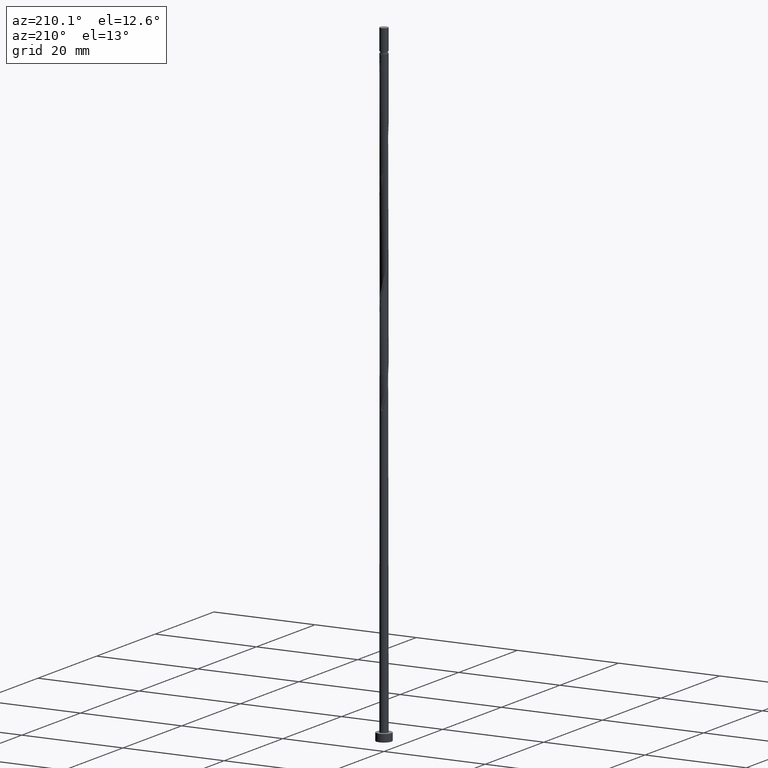
[diagram: clean part render]
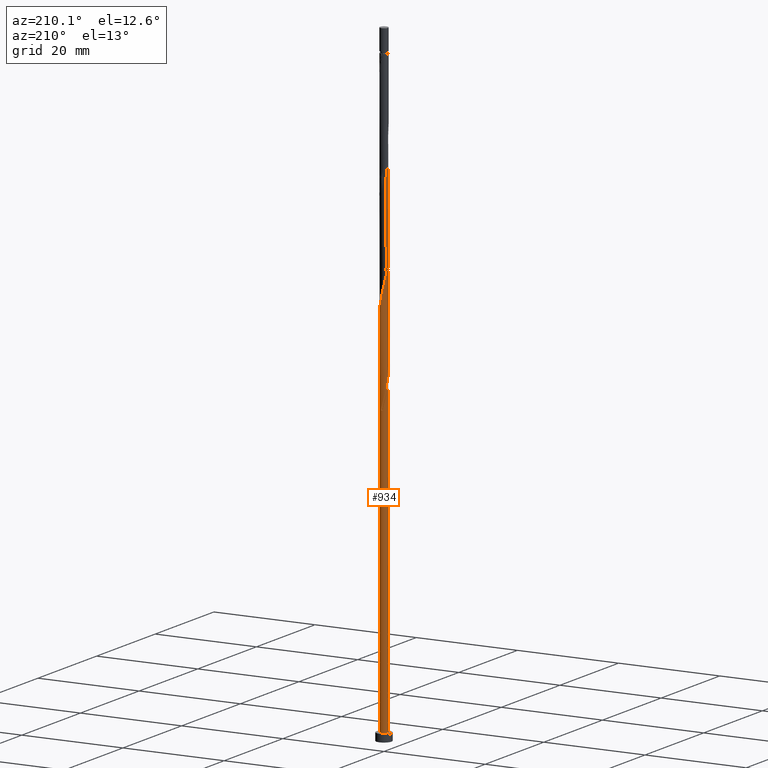
[diagram: same view with one face highlighted and labeled with its STEP entity id]
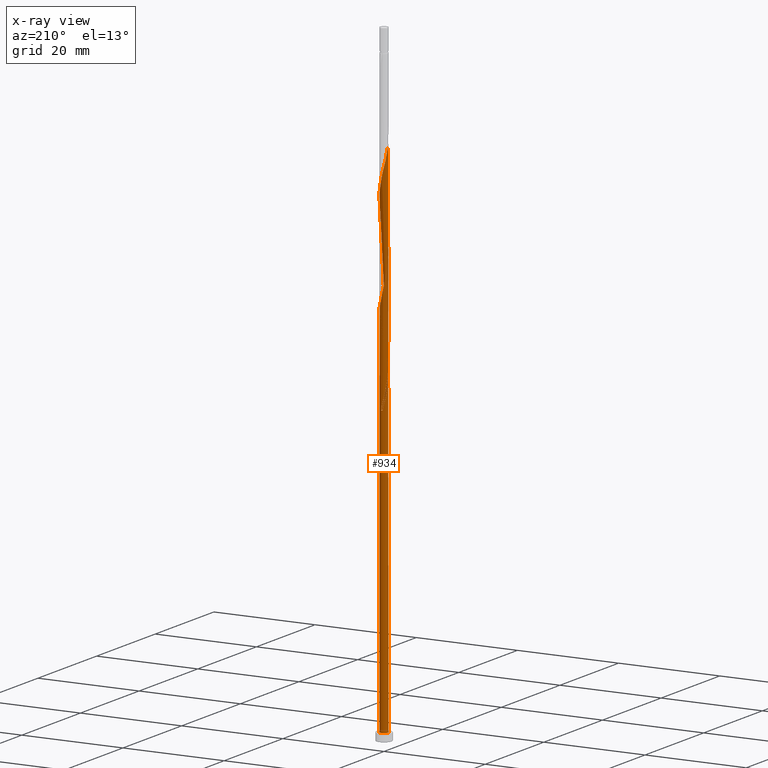
[diagram: x-ray of the same camera — body ghosted, the highlighted face saturated]
A machine part, auxiliary view. The second image highlights one B-rep face of the part: STEP entity #934.
The next image is the same camera in x-ray: the body ghosted, the highlighted face saturated — about 0% of this face is hidden behind the body in this view.
In plain terms, the highlighted cylindrical surface (bore or boss wall) has radius 0.8 mm, axis along (-0, -0, -1).
Its self-contained STEP definition (entity closure, byte-faithful):
#38 = EDGE_CURVE ( 'NONE', #1007, #109, #391, .T. ) ;
#41 = CARTESIAN_POINT ( 'NONE',  ( -0.4473088524546936506, 0.6752552068035418964, 60.65286961656157416 ) ) ;
#50 = CARTESIAN_POINT ( 'NONE',  ( -0.8000000000000014877, 1.015782713562173811E-15, 63.92183872469851735 ) ) ;
#57 = CARTESIAN_POINT ( 'NONE',  ( 0.09086303787922854480, 0.7948231931362848002, 77.84036961656160258 ) ) ;
#62 = CARTESIAN_POINT ( 'NONE',  ( -0.7840000000000015845, 0.1591979899370596363, 63.25703628322827399 ) ) ;
#70 = CARTESIAN_POINT ( 'NONE',  ( -0.7840000000000013625, -0.1591979899370594975, 63.25703628322825978 ) ) ;
#75 = CARTESIAN_POINT ( 'NONE',  ( -0.3936756093006899548, 0.6964334244145182762, 59.09036961656157416 ) ) ;
#80 = CARTESIAN_POINT ( 'NONE',  ( -0.7278435542695689264, 0.3320297584678865710, 61.17370294989493118 ) ) ;
#87 = CARTESIAN_POINT ( 'NONE',  ( 0.2167506644810797689, 0.7804319017355962895, 98.15286961656160258 ) ) ;
#93 = CARTESIAN_POINT ( 'NONE',  ( 0.8092144845369734218, 0.03502458872262277645, 93.98620294989494539 ) ) ;
#101 = CARTESIAN_POINT ( 'NONE',  ( -0.6752552068035418964, 0.4473088524546935396, 102.3195362832282456 ) ) ;
#109 = VERTEX_POINT ( 'NONE', #602 ) ;
#135 = AXIS2_PLACEMENT_3D ( 'NONE', #1389, #1288, #615 ) ;
#152 = CARTESIAN_POINT ( 'NONE',  ( -0.3320297584678866820, 0.7278435542695691485, 60.13203628322826688 ) ) ;
#166 = CARTESIAN_POINT ( 'NONE',  ( 0.03502458872262283196, -0.8092144845369734218, 67.94453628322824557 ) ) ;
#178 = CARTESIAN_POINT ( 'NONE',  ( -0.7948231931362848002, 0.09086303787922839215, 62.21536961656158837 ) ) ;
#179 = ORIENTED_EDGE ( 'NONE', *, *, #307, .F. ) ;
#187 = CARTESIAN_POINT ( 'NONE',  ( -0.8092144845369734218, -0.03502458872262291523, 83.56953628322825978 ) ) ;
#193 = CARTESIAN_POINT ( 'NONE',  ( 0.03502458872262283196, -0.8092144845369734218, 88.77786961656161679 ) ) ;
#199 = CARTESIAN_POINT ( 'NONE',  ( 0.5896175171267125092, -0.5406950929103505610, 91.38203628322825978 ) ) ;
#209 = CARTESIAN_POINT ( 'NONE',  ( -0.2833713911514961770, 0.7587855154630289700, 100.2362029498949312 ) ) ;
#224 = ORIENTED_EDGE ( 'NONE', *, *, #307, .T. ) ;
#248 = CARTESIAN_POINT ( 'NONE',  ( -0.8000000000000012657, -9.558103024293533539E-16, 62.59223384175800931 ) ) ;
#249 = CYLINDRICAL_SURFACE ( 'NONE', #868, 0.8000000000000000444 ) ;
#263 = CARTESIAN_POINT ( 'NONE',  ( -0.2167506644810796024, 0.7804319017355962895, 59.61120294989490276 ) ) ;
#264 = CARTESIAN_POINT ( 'NONE',  ( -0.8000000000000000444, 0.000000000000000000, 1.500000000000000000 ) ) ;
#275 = AXIS2_PLACEMENT_3D ( 'NONE', #545, #325, #914 ) ;
#278 = CARTESIAN_POINT ( 'NONE',  ( 0.1591979899370594698, -0.7840000000000013625, 68.46536961656158837 ) ) ;
#283 = CARTESIAN_POINT ( 'NONE',  ( -0.6752552068035418964, 0.4473088524546935396, 60.65286961656160258 ) ) ;
#287 = CARTESIAN_POINT ( 'NONE',  ( -0.7948231931362848002, 0.09086303787922839215, 83.04870294989493118 ) ) ;
#289 = LINE ( 'NONE', #992, #820 ) ;
#293 = AXIS2_PLACEMENT_3D ( 'NONE', #1451, #559, #435 ) ;
#294 = CARTESIAN_POINT ( 'NONE',  ( 0.3320297584678867375, 0.7278435542695689264, 76.79870294989490276 ) ) ;
#300 = CARTESIAN_POINT ( 'NONE',  ( 0.7278435542695689264, -0.3320297584678867375, 71.59036961656157416 ) ) ;
#306 = CARTESIAN_POINT ( 'NONE',  ( 0.4473088524546936506, 0.6752552068035415633, 97.11120294989491697 ) ) ;
#307 = EDGE_CURVE ( 'NONE', #321, #797, #289, .T. ) ;
#314 = CARTESIAN_POINT ( 'NONE',  ( 0.5406950929103505610, 0.5896175171267123982, 96.59036961656161679 ) ) ;
#321 = VERTEX_POINT ( 'NONE', #248 ) ;
#325 = DIRECTION ( 'NONE',  ( 0.000000000000000000, 0.000000000000000000, 1.000000000000000000 ) ) ;
#330 = ORIENTED_EDGE ( 'NONE', *, *, #644, .T. ) ;
#352 = CARTESIAN_POINT ( 'NONE',  ( -0.1591979899370593865, 0.7840000000000013625, 58.04870294989491697 ) ) ;
#384 = CARTESIAN_POINT ( 'NONE',  ( 0.4473088524546936506, 0.6752552068035415633, 76.27786961656160258 ) ) ;
#386 = VERTEX_POINT ( 'NONE', #352 ) ;
#391 =( BOUNDED_CURVE ( )  B_SPLINE_CURVE ( 2, ( #50, #515, #62, #970, #849, #610, #504, #41, #152, #263, #1404, #482, #942 ),
 .UNSPECIFIED., .F., .F. ) 
 B_SPLINE_CURVE_WITH_KNOTS ( ( 3, 2, 2, 2, 2, 2, 3 ),
 ( 0.9295322023138553602, 0.9375000000000000000, 0.9499999999999999556, 0.9625000000000000222, 0.9749999999999999778, 0.9875000000000000444, 1.000000000000000000 ),
 .UNSPECIFIED. ) 
 CURVE ( )  GEOMETRIC_REPRESENTATION_ITEM ( )  RATIONAL_B_SPLINE_CURVE ( ( 0.9039174447099518339, 0.9019565955404815760, 0.9090909090909298218, 0.8978984914501458858, 0.9090909090909298218, 0.8978984914501458858, 0.9090909090909298218, 0.8978984914501458858, 0.9090909090909298218, 0.8978984914501458858, 0.9090909090909298218, 0.8978984914501458858, 0.9090909090909298218 ) ) 
 REPRESENTATION_ITEM ( '' )  );
#394 = CARTESIAN_POINT ( 'NONE',  ( -0.8000000000000012657, -9.558103024293533539E-16, 62.59223384175800931 ) ) ;
#399 = CARTESIAN_POINT ( 'NONE',  ( 0.5896175171267125092, -0.5406950929103505610, 70.54870294989491697 ) ) ;
#412 = CARTESIAN_POINT ( 'NONE',  ( 0.6340813333660078044, 0.5039798274498835662, 75.23620294989493118 ) ) ;
#417 = CARTESIAN_POINT ( 'NONE',  ( 0.7278435542695689264, -0.3320297584678867375, 92.42370294989490276 ) ) ;
#423 = CARTESIAN_POINT ( 'NONE',  ( 0.2833713911514960659, -0.7587855154630289700, 89.81953628322825978 ) ) ;
#432 = ORIENTED_EDGE ( 'NONE', *, *, #1103, .F. ) ;
#435 = DIRECTION ( 'NONE',  ( 1.000000000000000000, 0.000000000000000000, 0.000000000000000000 ) ) ;
#461 = CIRCLE ( 'NONE', #135, 0.8000000000000000444 ) ;
#469 = DIRECTION ( 'NONE',  ( -0.000000000000000000, -0.000000000000000000, -1.000000000000000000 ) ) ;
#482 = CARTESIAN_POINT ( 'NONE',  ( 0.03502458872262293604, 0.8092144845369735329, 58.56953628322825267 ) ) ;
#499 = CARTESIAN_POINT ( 'NONE',  ( -0.03502458872262271400, 0.8092144845369734218, 78.36120294989491697 ) ) ;
#504 = CARTESIAN_POINT ( 'NONE',  ( -0.5406950929103506720, 0.5896175171267129533, 61.17370294989491697 ) ) ;
#505 = CARTESIAN_POINT ( 'NONE',  ( 0.8092144845369734218, 0.03502458872262277645, 73.15286961656158837 ) ) ;
#515 = CARTESIAN_POINT ( 'NONE',  ( -0.8000000000000010436, 0.08040302522073877745, 63.58753414929067560 ) ) ;
#516 = CARTESIAN_POINT ( 'NONE',  ( -0.1591979899370593865, 0.7840000000000013625, 58.04870294989491697 ) ) ;
#522 = CARTESIAN_POINT ( 'NONE',  ( -0.6964334244145182762, -0.3936756093006898438, 64.29870294989493118 ) ) ;
#523 = VERTEX_POINT ( 'NONE', #1008 ) ;
#528 = CARTESIAN_POINT ( 'NONE',  ( -0.8000000000000013767, -0.08040302522073711211, 62.92653841716585106 ) ) ;
#531 = EDGE_CURVE ( 'NONE', #523, #1007, #763, .T. ) ;
#535 = CARTESIAN_POINT ( 'NONE',  ( -0.4473088524546935396, -0.6752552068035416744, 86.69453628322830241 ) ) ;
#541 = CARTESIAN_POINT ( 'NONE',  ( -0.03502458872262271400, 0.8092144845369734218, 99.19453628322825978 ) ) ;
#545 = CARTESIAN_POINT ( 'NONE',  ( 0.000000000000000000, 0.000000000000000000, 1.500000000000000000 ) ) ;
#548 = CARTESIAN_POINT ( 'NONE',  ( -0.09086303787922839215, -0.7948231931362848002, 88.25703628322828820 ) ) ;
#550 = EDGE_LOOP ( 'NONE', ( #851, #1016, #224, #330, #1283, #179, #432, #687, #963 ) ) ;
#559 = DIRECTION ( 'NONE',  ( 0.000000000000000000, 0.000000000000000000, 1.000000000000000000 ) ) ;
#567 = CARTESIAN_POINT ( 'NONE',  ( -0.8000000000000017097, 0.04557898995714362161, 104.0693894192174014 ) ) ;
#594 = CARTESIAN_POINT ( 'NONE',  ( -0.8000000000000014877, 1.015782713562174009E-15, 63.92183872469851735 ) ) ;
#602 = CARTESIAN_POINT ( 'NONE',  ( 0.1591979899370598028, 0.7840000000000015845, 58.04870294989491697 ) ) ;
#610 = CARTESIAN_POINT ( 'NONE',  ( -0.6340813333660076934, 0.5039798274498836772, 61.69453628322823846 ) ) ;
#611 = CARTESIAN_POINT ( 'NONE',  ( -0.7804319017355960675, 0.2167506644810796579, 61.69453628322825978 ) ) ;
#615 = DIRECTION ( 'NONE',  ( -1.000000000000000000, 0.000000000000000000, 0.000000000000000000 ) ) ;
#617 = CARTESIAN_POINT ( 'NONE',  ( -0.3936756093006899548, 0.6964334244145182762, 79.92370294989493118 ) ) ;
#625 = CARTESIAN_POINT ( 'NONE',  ( -0.09086303787922839215, -0.7948231931362848002, 67.42370294989490276 ) ) ;
#639 = CARTESIAN_POINT ( 'NONE',  ( -0.3320297584678867375, -0.7278435542695689264, 66.38203628322824557 ) ) ;
#644 = EDGE_CURVE ( 'NONE', #797, #724, #943, .T. ) ;
#646 = CARTESIAN_POINT ( 'NONE',  ( -0.6340813333660078044, -0.5039798274498836772, 85.65286961656160258 ) ) ;
#653 = CARTESIAN_POINT ( 'NONE',  ( 0.7587855154630289700, 0.2833713911514960104, 95.02786961656160258 ) ) ;
#661 = CARTESIAN_POINT ( 'NONE',  ( -0.5406950929103505610, -0.5896175171267125092, 86.17370294989490276 ) ) ;
#687 = ORIENTED_EDGE ( 'NONE', *, *, #1423, .T. ) ;
#711 = DIRECTION ( 'NONE',  ( -1.000000000000000000, 0.000000000000000000, 0.000000000000000000 ) ) ;
#724 = VERTEX_POINT ( 'NONE', #1388 ) ;
#732 = CARTESIAN_POINT ( 'NONE',  ( 0.7587855154630289700, 0.2833713911514960104, 74.19453628322825978 ) ) ;
#737 = CARTESIAN_POINT ( 'NONE',  ( -0.7587855154630289700, -0.2833713911514961215, 63.77786961656160969 ) ) ;
#742 = CARTESIAN_POINT ( 'NONE',  ( -0.7840000000000013625, -0.1591979899370594975, 84.09036961656157416 ) ) ;
#750 = CARTESIAN_POINT ( 'NONE',  ( -0.6752552068035418964, 0.4473088524546935396, 81.48620294989493118 ) ) ;
#756 = CARTESIAN_POINT ( 'NONE',  ( 0.7804319017355962895, -0.2167506644810797134, 72.11120294989494539 ) ) ;
#762 = CARTESIAN_POINT ( 'NONE',  ( 0.09086303787922854480, 0.7948231931362848002, 98.67370294989491697 ) ) ;
#763 = LINE ( 'NONE', #877, #986 ) ;
#770 = CARTESIAN_POINT ( 'NONE',  ( -0.3936756093006899548, 0.6964334244145182762, 100.7570362832282598 ) ) ;
#772 = DIRECTION ( 'NONE',  ( -0.000000000000000000, -0.000000000000000000, -1.000000000000000000 ) ) ;
#797 = VERTEX_POINT ( 'NONE', #264 ) ;
#820 = VECTOR ( 'NONE', #772, 1000.000000000000000 ) ;
#822 = CARTESIAN_POINT ( 'NONE',  ( 0.000000000000000000, 0.000000000000000000, 125.0000000000000000 ) ) ;
#843 = CARTESIAN_POINT ( 'NONE',  ( -0.5039798274498836772, 0.6340813333660078044, 80.44453628322828820 ) ) ;
#849 = CARTESIAN_POINT ( 'NONE',  ( -0.6964334244145183872, 0.3936756093006901769, 62.21536961656160258 ) ) ;
#850 = CARTESIAN_POINT ( 'NONE',  ( 0.2833713911514960659, -0.7587855154630289700, 68.98620294989490276 ) ) ;
#851 = ORIENTED_EDGE ( 'NONE', *, *, #531, .F. ) ;
#856 = CARTESIAN_POINT ( 'NONE',  ( -0.8000000000000012657, -9.558103024293533539E-16, 62.59223384175800931 ) ) ;
#864 = CARTESIAN_POINT ( 'NONE',  ( -0.6340813333660078044, -0.5039798274498836772, 64.81953628322825978 ) ) ;
#868 = AXIS2_PLACEMENT_3D ( 'NONE', #822, #469, #711 ) ;
#871 = CARTESIAN_POINT ( 'NONE',  ( -0.2833713911514961770, 0.7587855154630289700, 58.56953628322827399 ) ) ;
#876 = CARTESIAN_POINT ( 'NONE',  ( 0.7804319017355962895, -0.2167506644810797134, 92.94453628322827399 ) ) ;
#877 = CARTESIAN_POINT ( 'NONE',  ( -0.8000000000000000444, 0.000000000000000000, 125.0000000000000000 ) ) ;
#884 = CARTESIAN_POINT ( 'NONE',  ( 0.5039798274498835662, -0.6340813333660078044, 90.86120294989493118 ) ) ;
#914 = DIRECTION ( 'NONE',  ( 1.000000000000000000, 0.000000000000000000, 0.000000000000000000 ) ) ;
#934 = ADVANCED_FACE ( 'NONE', ( #1147 ), #249, .T. ) ;
#942 = CARTESIAN_POINT ( 'NONE',  ( 0.1591979899370598028, 0.7840000000000015845, 58.04870294989491697 ) ) ;
#943 = CIRCLE ( 'NONE', #293, 0.8000000000000000444 ) ;
#948 =( BOUNDED_CURVE ( )  B_SPLINE_CURVE ( 2, ( #516, #871, #75, #1078, #984, #283, #80, #611, #178, #1398, #394 ),
 .UNSPECIFIED., .F., .T. ) 
 B_SPLINE_CURVE_WITH_KNOTS ( ( 3, 2, 2, 2, 2, 3 ),
 ( 0.000000000000000000, 0.01249999999999995559, 0.02500000000000002220, 0.03749999999999997780, 0.05000000000000004441, 0.05453220231385520061 ),
 .UNSPECIFIED. ) 
 CURVE ( )  GEOMETRIC_REPRESENTATION_ITEM ( )  RATIONAL_B_SPLINE_CURVE ( ( 0.9090909090909286006, 0.8978984914501445536, 0.9090909090909286006, 0.8978984914501445536, 0.9090909090909286006, 0.8978984914501445536, 0.9090909090909286006, 0.8978984914501445536, 0.9090909090909286006, 0.9050328050005930214, 0.9039174447099509457 ) ) 
 REPRESENTATION_ITEM ( '' )  );
#963 = ORIENTED_EDGE ( 'NONE', *, *, #38, .F. ) ;
#964 = CARTESIAN_POINT ( 'NONE',  ( 0.6964334244145182762, 0.3936756093006897883, 74.71536961656160258 ) ) ;
#970 = CARTESIAN_POINT ( 'NONE',  ( -0.7587855154630288590, 0.2833713911514962880, 62.73620294989493829 ) ) ;
#971 = CARTESIAN_POINT ( 'NONE',  ( -0.4473088524546935396, -0.6752552068035416744, 65.86120294989493118 ) ) ;
#977 = CARTESIAN_POINT ( 'NONE',  ( -0.5406950929103505610, -0.5896175171267125092, 65.34036961656158837 ) ) ;
#984 = CARTESIAN_POINT ( 'NONE',  ( -0.5896175171267125092, 0.5406950929103505610, 60.13203628322825978 ) ) ;
#986 = VECTOR ( 'NONE', #1155, 1000.000000000000000 ) ;
#991 = CARTESIAN_POINT ( 'NONE',  ( -0.6964334244145182762, -0.3936756093006898438, 85.13203628322824557 ) ) ;
#992 = CARTESIAN_POINT ( 'NONE',  ( -0.8000000000000000444, 0.000000000000000000, 125.0000000000000000 ) ) ;
#994 = CARTESIAN_POINT ( 'NONE',  ( -0.7948231931362848002, 0.09086303787922839215, 103.8820362832282598 ) ) ;
#997 = CARTESIAN_POINT ( 'NONE',  ( -0.3320297584678867375, -0.7278435542695689264, 87.21536961656160258 ) ) ;
#1003 =( BOUNDED_CURVE ( )  B_SPLINE_CURVE ( 2, ( #856, #528, #70, #737, #522, #864, #977, #971, #639, #1419, #625, #166, #278, #850, #1412, #1073, #399, #1312, #300, #756, #1196, #505, #1301, #732, #964, #412, #1069, #384, #294, #1406, #57, #499, #1295, #1426, #617, #843, #1290, #750, #1184, #1202, #287, #187, #742, #1090, #991, #646, #661, #535, #997, #1433, #548, #193, #1439, #423, #1214, #884, #199, #1208, #417, #876, #1318, #93, #1448, #653, #1005, #1097, #314, #306, #1107, #87, #762, #541, #1324, #209, #770, #1223, #1115, #101, #1119, #1243, #994, #567, #1127 ),
 .UNSPECIFIED., .F., .F. ) 
 B_SPLINE_CURVE_WITH_KNOTS ( ( 3, 2, 2, 2, 2, 2, 2, 2, 2, 2, 2, 2, 2, 2, 2, 2, 2, 2, 2, 2, 2, 2, 2, 2, 2, 2, 2, 2, 2, 2, 2, 2, 2, 2, 2, 2, 2, 2, 2, 2, 2, 3 ),
 ( 0.05453220231385520061, 0.06250000000000000000, 0.07499999999999995559, 0.08750000000000002220, 0.09999999999999997780, 0.1125000000000000444, 0.1250000000000000000, 0.1374999999999999556, 0.1500000000000000222, 0.1624999999999999778, 0.1750000000000000444, 0.1875000000000000000, 0.1999999999999999556, 0.2125000000000000222, 0.2249999999999999778, 0.2375000000000000444, 0.2500000000000000000, 0.2624999999999999556, 0.2750000000000000222, 0.2874999999999999778, 0.3000000000000000444, 0.3125000000000000000, 0.3249999999999999556, 0.3375000000000000222, 0.3499999999999999778, 0.3625000000000000444, 0.3750000000000000000, 0.3874999999999999556, 0.4000000000000000222, 0.4124999999999999778, 0.4250000000000000444, 0.4375000000000000000, 0.4499999999999999556, 0.4625000000000000222, 0.4749999999999999778, 0.4875000000000000444, 0.5000000000000000000, 0.5124999999999999556, 0.5250000000000000222, 0.5374999999999999778, 0.5500000000000000444, 0.5545322023138554712 ),
 .UNSPECIFIED. ) 
 CURVE ( )  GEOMETRIC_REPRESENTATION_ITEM ( )  RATIONAL_B_SPLINE_CURVE ( ( 0.9039174447099509457, 0.9019565955404801327, 0.9090909090909286006, 0.8978984914501445536, 0.9090909090909286006, 0.8978984914501445536, 0.9090909090909286006, 0.8978984914501445536, 0.9090909090909286006, 0.8978984914501445536, 0.9090909090909286006, 0.8978984914501445536, 0.9090909090909286006, 0.8978984914501445536, 0.9090909090909286006, 0.8978984914501445536, 0.9090909090909286006, 0.8978984914501445536, 0.9090909090909286006, 0.8978984914501445536, 0.9090909090909286006, 0.8978984914501445536, 0.9090909090909286006, 0.8978984914501445536, 0.9090909090909286006, 0.8978984914501445536, 0.9090909090909286006, 0.8978984914501445536, 0.9090909090909286006, 0.8978984914501445536, 0.9090909090909286006, 0.8978984914501445536, 0.9090909090909286006, 0.8978984914501445536, 0.9090909090909286006, 0.8978984914501445536, 0.9090909090909286006, 0.8978984914501445536, 0.9090909090909286006, 0.8978984914501445536, 0.9090909090909286006, 0.8978984914501445536, 0.9090909090909286006, 0.8978984914501445536, 0.9090909090909286006, 0.8978984914501445536, 0.9090909090909286006, 0.8978984914501445536, 0.9090909090909286006, 0.8978984914501445536, 0.9090909090909286006, 0.8978984914501445536, 0.9090909090909286006, 0.8978984914501445536, 0.9090909090909286006, 0.8978984914501445536, 0.9090909090909286006, 0.8978984914501445536, 0.9090909090909286006, 0.8978984914501445536, 0.9090909090909286006, 0.8978984914501445536, 0.9090909090909286006, 0.8978984914501445536, 0.9090909090909286006, 0.8978984914501445536, 0.9090909090909286006, 0.8978984914501445536, 0.9090909090909286006, 0.8978984914501445536, 0.9090909090909286006, 0.8978984914501445536, 0.9090909090909286006, 0.8978984914501445536, 0.9090909090909286006, 0.8978984914501445536, 0.9090909090909286006, 0.8978984914501445536, 0.9090909090909286006, 0.8978984914501445536, 0.9090909090909286006, 0.9050328050005926883, 0.9039174447099506127 ) ) 
 REPRESENTATION_ITEM ( '' )  );
#1005 = CARTESIAN_POINT ( 'NONE',  ( 0.6964334244145182762, 0.3936756093006897883, 95.54870294989493118 ) ) ;
#1007 = VERTEX_POINT ( 'NONE', #594 ) ;
#1008 = CARTESIAN_POINT ( 'NONE',  ( -0.8000000000000012657, -5.509965272828037295E-16, 104.2589005084246594 ) ) ;
#1016 = ORIENTED_EDGE ( 'NONE', *, *, #1123, .F. ) ;
#1069 = CARTESIAN_POINT ( 'NONE',  ( 0.5406950929103505610, 0.5896175171267123982, 75.75703628322825978 ) ) ;
#1073 = CARTESIAN_POINT ( 'NONE',  ( 0.5039798274498835662, -0.6340813333660078044, 70.02786961656158837 ) ) ;
#1078 = CARTESIAN_POINT ( 'NONE',  ( -0.5039798274498836772, 0.6340813333660078044, 59.61120294989492407 ) ) ;
#1090 = CARTESIAN_POINT ( 'NONE',  ( -0.7587855154630289700, -0.2833713911514961215, 84.61120294989494539 ) ) ;
#1097 = CARTESIAN_POINT ( 'NONE',  ( 0.6340813333660078044, 0.5039798274498835662, 96.06953628322825978 ) ) ;
#1103 = EDGE_CURVE ( 'NONE', #386, #321, #948, .T. ) ;
#1107 = CARTESIAN_POINT ( 'NONE',  ( 0.3320297584678867375, 0.7278435542695689264, 97.63203628322824557 ) ) ;
#1115 = CARTESIAN_POINT ( 'NONE',  ( -0.5896175171267125092, 0.5406950929103505610, 101.7987029498949312 ) ) ;
#1119 = CARTESIAN_POINT ( 'NONE',  ( -0.7278435542695689264, 0.3320297584678865710, 102.8403696165615884 ) ) ;
#1123 = EDGE_CURVE ( 'NONE', #321, #523, #1003, .T. ) ;
#1127 = CARTESIAN_POINT ( 'NONE',  ( -0.8000000000000013767, -5.509965272828037295E-16, 104.2589005084246594 ) ) ;
#1147 = FACE_OUTER_BOUND ( 'NONE', #550, .T. ) ;
#1155 = DIRECTION ( 'NONE',  ( -0.000000000000000000, -0.000000000000000000, -1.000000000000000000 ) ) ;
#1171 = EDGE_CURVE ( 'NONE', #724, #797, #1330, .T. ) ;
#1184 = CARTESIAN_POINT ( 'NONE',  ( -0.7278435542695689264, 0.3320297584678865710, 82.00703628322824557 ) ) ;
#1196 = CARTESIAN_POINT ( 'NONE',  ( 0.7948231931362848002, -0.09086303787922843378, 72.63203628322828820 ) ) ;
#1202 = CARTESIAN_POINT ( 'NONE',  ( -0.7804319017355960675, 0.2167506644810796579, 82.52786961656158837 ) ) ;
#1208 = CARTESIAN_POINT ( 'NONE',  ( 0.6752552068035416744, -0.4473088524546935396, 91.90286961656157416 ) ) ;
#1214 = CARTESIAN_POINT ( 'NONE',  ( 0.3936756093006898438, -0.6964334244145182762, 90.34036961656158837 ) ) ;
#1223 = CARTESIAN_POINT ( 'NONE',  ( -0.5039798274498836772, 0.6340813333660078044, 101.2778696165616026 ) ) ;
#1243 = CARTESIAN_POINT ( 'NONE',  ( -0.7804319017355960675, 0.2167506644810796579, 103.3612029498949738 ) ) ;
#1283 = ORIENTED_EDGE ( 'NONE', *, *, #1171, .T. ) ;
#1288 = DIRECTION ( 'NONE',  ( 0.000000000000000000, -0.000000000000000000, -1.000000000000000000 ) ) ;
#1290 = CARTESIAN_POINT ( 'NONE',  ( -0.5896175171267125092, 0.5406950929103505610, 80.96536961656158837 ) ) ;
#1295 = CARTESIAN_POINT ( 'NONE',  ( -0.1591979899370594143, 0.7840000000000013625, 78.88203628322824557 ) ) ;
#1301 = CARTESIAN_POINT ( 'NONE',  ( 0.7840000000000013625, 0.1591979899370594698, 73.67370294989490276 ) ) ;
#1312 = CARTESIAN_POINT ( 'NONE',  ( 0.6752552068035416744, -0.4473088524546935396, 71.06953628322827399 ) ) ;
#1318 = CARTESIAN_POINT ( 'NONE',  ( 0.7948231931362848002, -0.09086303787922843378, 93.46536961656160258 ) ) ;
#1324 = CARTESIAN_POINT ( 'NONE',  ( -0.1591979899370594143, 0.7840000000000013625, 99.71536961656157416 ) ) ;
#1330 = CIRCLE ( 'NONE', #275, 0.8000000000000000444 ) ;
#1388 = CARTESIAN_POINT ( 'NONE',  ( 0.8000000000000000444, 0.000000000000000000, 1.500000000000000000 ) ) ;
#1389 = CARTESIAN_POINT ( 'NONE',  ( 0.000000000000000000, 0.000000000000000000, 58.04870294989491697 ) ) ;
#1398 = CARTESIAN_POINT ( 'NONE',  ( -0.8000000000000013767, 0.04557898995714633472, 62.40272275255071577 ) ) ;
#1404 = CARTESIAN_POINT ( 'NONE',  ( -0.09086303787922840602, 0.7948231931362851332, 59.09036961656160258 ) ) ;
#1406 = CARTESIAN_POINT ( 'NONE',  ( 0.2167506644810797689, 0.7804319017355962895, 77.31953628322824557 ) ) ;
#1412 = CARTESIAN_POINT ( 'NONE',  ( 0.3936756093006898438, -0.6964334244145182762, 69.50703628322825978 ) ) ;
#1419 = CARTESIAN_POINT ( 'NONE',  ( -0.2167506644810796856, -0.7804319017355960675, 66.90286961656160258 ) ) ;
#1423 = EDGE_CURVE ( 'NONE', #386, #109, #461, .T. ) ;
#1426 = CARTESIAN_POINT ( 'NONE',  ( -0.2833713911514961770, 0.7587855154630289700, 79.40286961656158837 ) ) ;
#1433 = CARTESIAN_POINT ( 'NONE',  ( -0.2167506644810796856, -0.7804319017355960675, 87.73620294989493118 ) ) ;
#1439 = CARTESIAN_POINT ( 'NONE',  ( 0.1591979899370594698, -0.7840000000000013625, 89.29870294989490276 ) ) ;
#1448 = CARTESIAN_POINT ( 'NONE',  ( 0.7840000000000013625, 0.1591979899370594698, 94.50703628322823135 ) ) ;
#1451 = CARTESIAN_POINT ( 'NONE',  ( 0.000000000000000000, 0.000000000000000000, 1.500000000000000000 ) ) ;